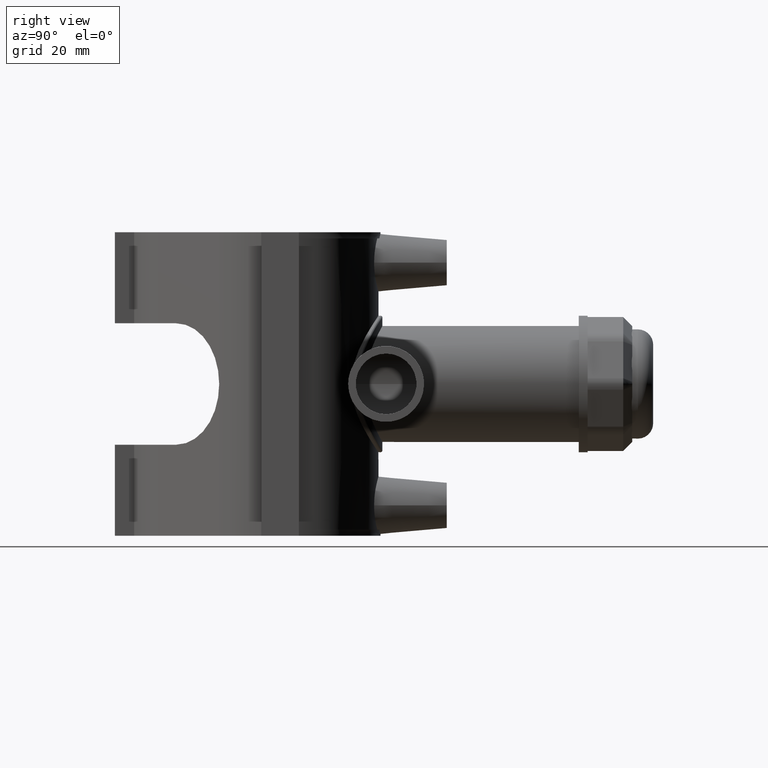
[diagram: clean part render]
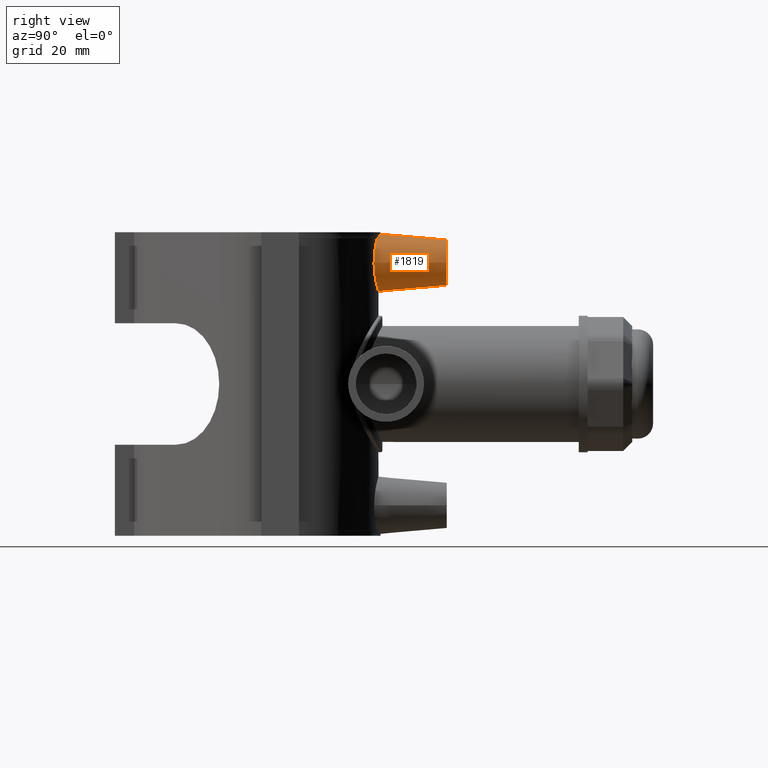
[diagram: same view with one face highlighted and labeled with its STEP entity id]
A machine part, right view. The second image highlights one B-rep face of the part: STEP entity #1819.
In plain terms, the highlighted conical surface has half-angle 5 deg.
Its self-contained STEP definition (entity closure, byte-faithful):
#19=(
BOUNDED_CURVE()
B_SPLINE_CURVE(2,(#3398,#3399,#3400),.UNSPECIFIED.,.F.,.F.)
B_SPLINE_CURVE_WITH_KNOTS((3,3),(0.0398167831126664,0.108912894583584),
 .UNSPECIFIED.)
CURVE()
GEOMETRIC_REPRESENTATION_ITEM()
RATIONAL_B_SPLINE_CURVE((1.00004891007262,1.00008159279373,1.00008041755517))
REPRESENTATION_ITEM('')
);
#20=(
BOUNDED_CURVE()
B_SPLINE_CURVE(2,(#3406,#3407,#3408),.UNSPECIFIED.,.F.,.F.)
B_SPLINE_CURVE_WITH_KNOTS((3,3),(0.104116125051685,0.173212236522602),
 .UNSPECIFIED.)
CURVE()
GEOMETRIC_REPRESENTATION_ITEM()
RATIONAL_B_SPLINE_CURVE((1.00008041755517,1.00008159279373,1.00004891007262))
REPRESENTATION_ITEM('')
);
#329=CONICAL_SURFACE('',#1993,7.5,5.);
#449=CIRCLE('',#1994,7.5);
#489=FACE_BOUND('',#692,.T.);
#567=FACE_OUTER_BOUND('',#691,.T.);
#691=EDGE_LOOP('',(#1513,#1514,#1515,#1516,#1517));
#692=EDGE_LOOP('',(#1518));
#766=B_SPLINE_CURVE_WITH_KNOTS('',3,(#3415,#3416,#3417,#3418,#3419,#3420,
#3421,#3422,#3423,#3424),.UNSPECIFIED.,.F.,.F.,(4,2,2,2,4),(3.80240147731351,
3.9501428370638,4.30858013206433,4.66701742706485,4.81475878681515),
 .UNSPECIFIED.);
#767=B_SPLINE_CURVE_WITH_KNOTS('',3,(#3437,#3438,#3439,#3440,#3441,#3442,
#3443,#3444),.UNSPECIFIED.,.F.,.F.,(4,2,2,4),(2.89127560494004,3.25332350440875,
3.61537140387746,3.81859572748109),.UNSPECIFIED.);
#768=B_SPLINE_CURVE_WITH_KNOTS('',3,(#3445,#3446,#3447,#3448,#3449,#3450,
#3451,#3452,#3453,#3454,#3455,#3456,#3457,#3458,#3459,#3460,#3461,#3462,
#3463,#3464,#3465,#3466,#3467,#3468,#3469),.UNSPECIFIED.,.F.,.F.,(4,2,2,
3,2,2,2,2,2,2,2,4),(4.85523108733587,5.05845541094265,5.42050331041136,
5.78255120988007,6.14459910934878,6.5066470088175,6.86741801058379,7.22818901235009,
7.58896001411639,7.94973101588268,8.3117789153514,8.67382681482011),
 .UNSPECIFIED.);
#872=VERTEX_POINT('',#3396);
#873=VERTEX_POINT('',#3397);
#874=VERTEX_POINT('',#3404);
#875=VERTEX_POINT('',#3405);
#881=VERTEX_POINT('',#3436);
#882=VERTEX_POINT('',#3470);
#1096=EDGE_CURVE('',#872,#873,#19,.T.);
#1099=EDGE_CURVE('',#874,#875,#20,.T.);
#1103=EDGE_CURVE('',#875,#872,#766,.T.);
#1110=EDGE_CURVE('',#881,#873,#767,.T.);
#1111=EDGE_CURVE('',#874,#881,#768,.T.);
#1112=EDGE_CURVE('',#882,#882,#449,.T.);
#1513=ORIENTED_EDGE('',*,*,#1099,.T.);
#1514=ORIENTED_EDGE('',*,*,#1103,.T.);
#1515=ORIENTED_EDGE('',*,*,#1096,.T.);
#1516=ORIENTED_EDGE('',*,*,#1110,.F.);
#1517=ORIENTED_EDGE('',*,*,#1111,.F.);
#1518=ORIENTED_EDGE('',*,*,#1112,.F.);
#1819=ADVANCED_FACE('',(#567,#489),#329,.T.);
#1993=AXIS2_PLACEMENT_3D('',#3435,#2401,#2402);
#1994=AXIS2_PLACEMENT_3D('',#3471,#2403,#2404);
#2401=DIRECTION('center_axis',(0.,-1.,0.));
#2402=DIRECTION('ref_axis',(1.,0.,0.));
#2403=DIRECTION('center_axis',(0.,1.,0.));
#2404=DIRECTION('ref_axis',(1.,0.,0.));
#3396=CARTESIAN_POINT('',(5.02092243298948,32.7675577045636,48.));
#3397=CARTESIAN_POINT('',(5.13117896250066,32.0923823119255,48.));
#3398=CARTESIAN_POINT('Ctrl Pts',(5.02092243298948,32.7675577045636,48.));
#3399=CARTESIAN_POINT('Ctrl Pts',(5.07587884723213,32.4336363671914,48.));
#3400=CARTESIAN_POINT('Ctrl Pts',(5.13117896250066,32.0923823119255,48.));
#3404=CARTESIAN_POINT('',(-5.13117896250066,32.0923823119255,48.));
#3405=CARTESIAN_POINT('',(-5.02092243298948,32.7675577045636,48.));
#3406=CARTESIAN_POINT('Ctrl Pts',(-5.13117896250066,32.0923823119255,48.));
#3407=CARTESIAN_POINT('Ctrl Pts',(-5.07587884723168,32.4336363671942,48.));
#3408=CARTESIAN_POINT('Ctrl Pts',(-5.02092243298948,32.7675577045636,48.));
#3415=CARTESIAN_POINT('Ctrl Pts',(-5.02092243298948,32.7675577045636,48.));
#3416=CARTESIAN_POINT('Ctrl Pts',(-4.58214950446323,32.8347902050657,48.2684360086521));
#3417=CARTESIAN_POINT('Ctrl Pts',(-4.11687674288014,32.8969405100926,48.5039883418409));
#3418=CARTESIAN_POINT('Ctrl Pts',(-2.46648320527564,33.0790175940415,49.1762993128723));
#3419=CARTESIAN_POINT('Ctrl Pts',(-1.19479098333509,33.15,49.4116272980414));
#3420=CARTESIAN_POINT('Ctrl Pts',(1.19479098333508,33.15,49.4116272980414));
#3421=CARTESIAN_POINT('Ctrl Pts',(2.46648320527563,33.0790175940415,49.1762993128723));
#3422=CARTESIAN_POINT('Ctrl Pts',(4.11687674288014,32.8969405100926,48.5039883418409));
#3423=CARTESIAN_POINT('Ctrl Pts',(4.58214950446323,32.8347902050657,48.2684360086521));
#3424=CARTESIAN_POINT('Ctrl Pts',(5.02092243298948,32.7675577045636,48.));
#3435=CARTESIAN_POINT('Origin',(0.,55.,40.));
#3436=CARTESIAN_POINT('',(9.59524244594183,31.0512692559193,40.));
#3437=CARTESIAN_POINT('Ctrl Pts',(9.59524244594183,31.0512692559193,40.));
#3438=CARTESIAN_POINT('Ctrl Pts',(9.59524244594183,31.0512692559193,41.2068263315624));
#3439=CARTESIAN_POINT('Ctrl Pts',(9.3470231898562,31.1311666751305,42.4865183222104));
#3440=CARTESIAN_POINT('Ctrl Pts',(8.35380569471185,31.412263489831,44.8262366368003));
#3441=CARTESIAN_POINT('Ctrl Pts',(7.60928976109968,31.6086786532308,45.8870399497053));
#3442=CARTESIAN_POINT('Ctrl Pts',(6.27802838097515,31.8916254604351,47.1901314360668));
#3443=CARTESIAN_POINT('Ctrl Pts',(5.73018665567347,31.9966083165979,47.6257526220462));
#3444=CARTESIAN_POINT('Ctrl Pts',(5.13117896251544,32.0923823119232,47.9999999999908));
#3445=CARTESIAN_POINT('Ctrl Pts',(-5.13117896248756,32.0923823119276,48.0000000000082));
#3446=CARTESIAN_POINT('Ctrl Pts',(-5.73018665565644,31.9966083166012,47.6257526220596));
#3447=CARTESIAN_POINT('Ctrl Pts',(-6.27802838096772,31.8916254604366,47.1901314360741));
#3448=CARTESIAN_POINT('Ctrl Pts',(-7.60928976109968,31.6086786532308,45.8870399497053));
#3449=CARTESIAN_POINT('Ctrl Pts',(-8.35380569471185,31.412263489831,44.8262366368003));
#3450=CARTESIAN_POINT('Ctrl Pts',(-9.3470231898562,31.1311666751305,42.4865183222104));
#3451=CARTESIAN_POINT('Ctrl Pts',(-9.59524244594183,31.0512692559193,41.2068263315624));
#3452=CARTESIAN_POINT('Ctrl Pts',(-9.59524244594183,31.0512692559193,40.));
#3453=CARTESIAN_POINT('Ctrl Pts',(-9.59524244594183,31.0512692559193,38.7931736684376));
#3454=CARTESIAN_POINT('Ctrl Pts',(-9.3470231898562,31.1311666751305,37.5134816777897));
#3455=CARTESIAN_POINT('Ctrl Pts',(-8.35380569471185,31.412263489831,35.1737633631997));
#3456=CARTESIAN_POINT('Ctrl Pts',(-7.60928976109968,31.6086786532308,34.1129600502947));
#3457=CARTESIAN_POINT('Ctrl Pts',(-5.90699332981886,31.9704853933175,32.446684726768));
#3458=CARTESIAN_POINT('Ctrl Pts',(-4.83429941664471,32.1602272677186,31.7260732041943));
#3459=CARTESIAN_POINT('Ctrl Pts',(-2.48234605122766,32.4266653583976,30.76831513355));
#3460=CARTESIAN_POINT('Ctrl Pts',(-1.20257000588765,32.5,30.5315050706667));
#3461=CARTESIAN_POINT('Ctrl Pts',(1.20257000588766,32.5,30.5315050706667));
#3462=CARTESIAN_POINT('Ctrl Pts',(2.48234605122766,32.4266653583976,30.76831513355));
#3463=CARTESIAN_POINT('Ctrl Pts',(4.83429941664471,32.1602272677186,31.7260732041943));
#3464=CARTESIAN_POINT('Ctrl Pts',(5.90699332981886,31.9704853933175,32.446684726768));
#3465=CARTESIAN_POINT('Ctrl Pts',(7.60928976109968,31.6086786532308,34.1129600502947));
#3466=CARTESIAN_POINT('Ctrl Pts',(8.35380569471185,31.412263489831,35.1737633631997));
#3467=CARTESIAN_POINT('Ctrl Pts',(9.3470231898562,31.1311666751305,37.5134816777897));
#3468=CARTESIAN_POINT('Ctrl Pts',(9.59524244594183,31.0512692559193,38.7931736684376));
#3469=CARTESIAN_POINT('Ctrl Pts',(9.59524244594183,31.0512692559193,40.));
#3470=CARTESIAN_POINT('',(-7.5,55.,40.));
#3471=CARTESIAN_POINT('Origin',(0.,55.,40.));